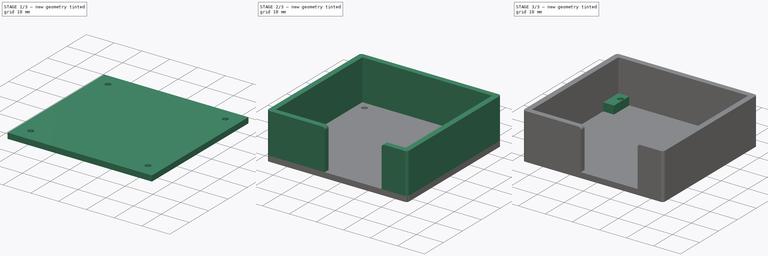
[diagram: build sequence overview — one tinted view per stage of 3, left to right]
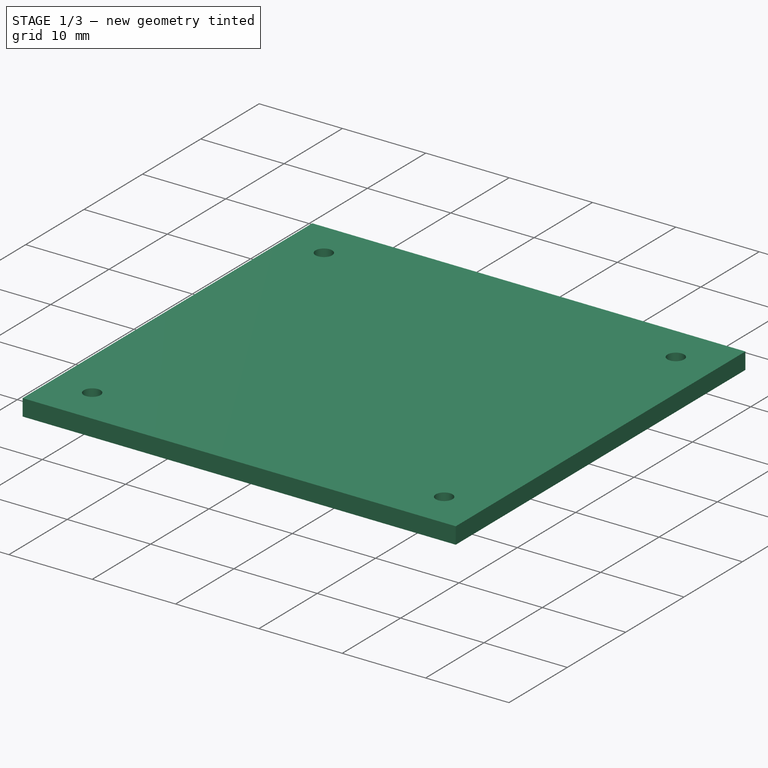
[diagram: stage 1 of 3 — iso view after this stage's code; geometry added in this stage tinted green]
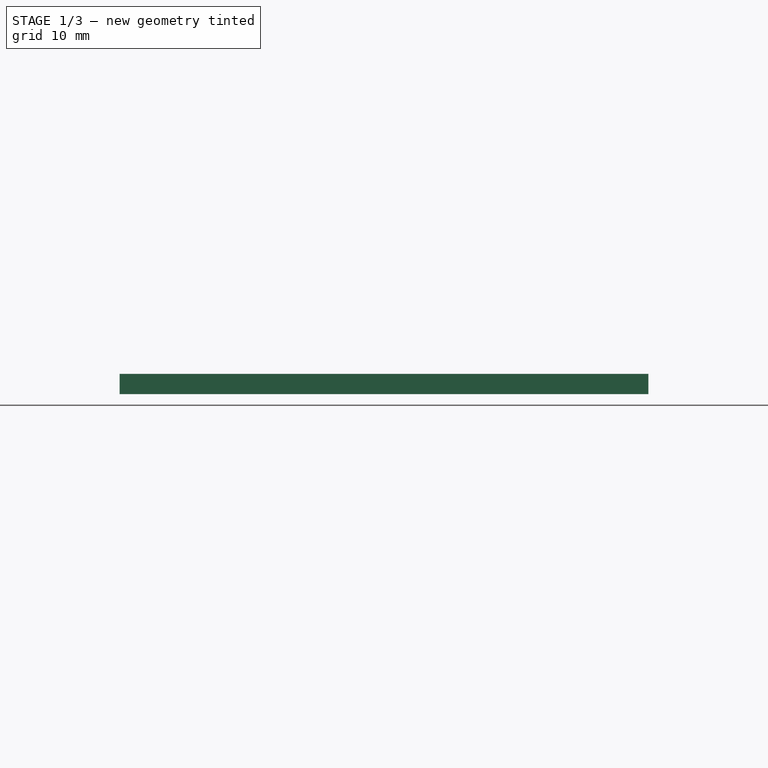
[diagram: stage 1 of 3 — front view after this stage's code; geometry added in this stage tinted green]
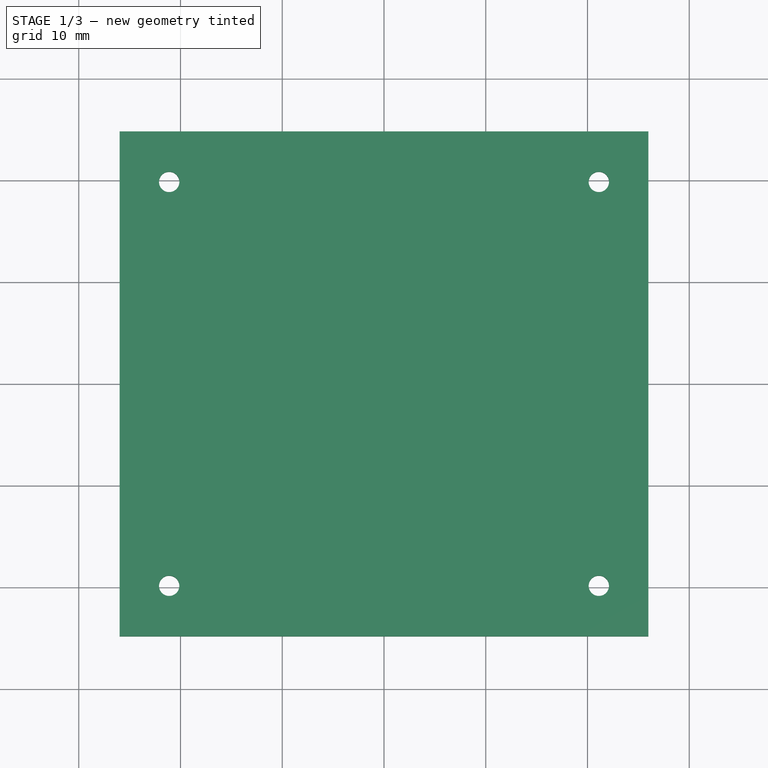
[diagram: stage 1 of 3 — top view after this stage's code; geometry added in this stage tinted green]
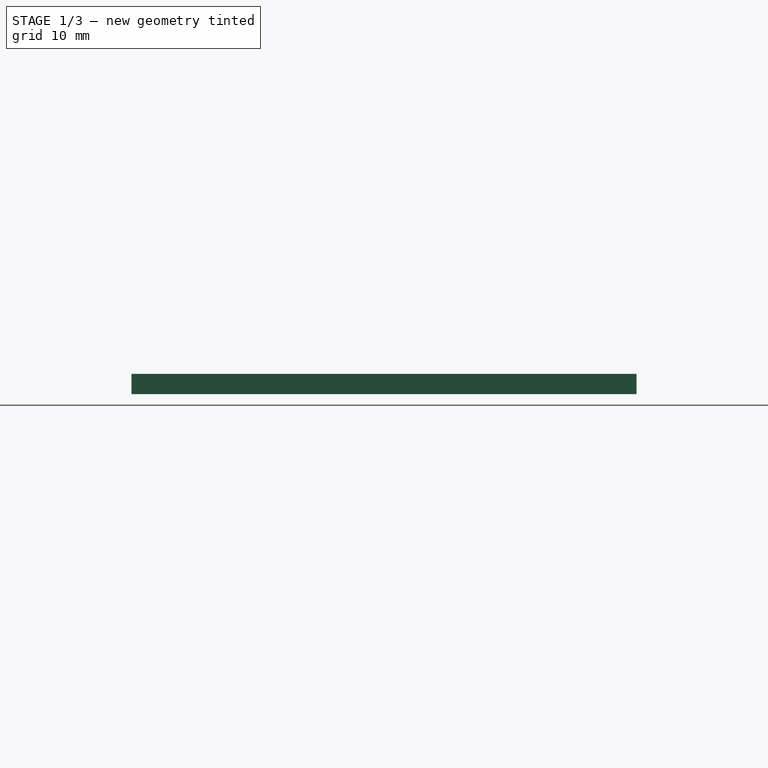
[diagram: stage 1 of 3 — right view after this stage's code; geometry added in this stage tinted green]
FCSTD DOCUMENT  (FreeCAD 0.19R24291 (Git))
Label: temp controller base
License: All rights reserved
LicenseURL: http://en.wikipedia.org/wiki/All_rights_reserved
objects: Sketcher::SketchObject×6, PartDesign::Pad×3, PartDesign::Pocket×3, PartDesign::Fillet×1, PartDesign::Body×1
note: 21 computed .brp shape members not serialized (recipe doc carries the construction recipe); baked Part::Feature solids carry a one-line shape summary decoded from their .brp

FEATURE [Sketcher::SketchObject] Sketch
  FullyConstrained = true
  MapMode = 5
  Support = -> [XY_Plane]
  sketch-geometry (4):
    g0: LineSegment StartX=-25.985 StartY=24.815 StartZ=0 EndX=25.985 EndY=24.815 EndZ=0
    g1: LineSegment StartX=25.985 StartY=24.815 StartZ=0 EndX=25.985 EndY=-24.815 EndZ=0
    g2: LineSegment StartX=25.985 StartY=-24.815 StartZ=0 EndX=-25.985 EndY=-24.815 EndZ=0
    g3: LineSegment StartX=-25.985 StartY=-24.815 StartZ=0 EndX=-25.985 EndY=24.815 EndZ=0
  constraints (11):
    c: Coincident(g0,g1)
    c: Coincident(g1,g2)
    c: Coincident(g2,g3)
    c: Coincident(g3,g0)
    c: Horizontal(g0)
    c: Horizontal(g2)
    c: Vertical(g1)
    c: Vertical(g3)
    c: Symmetric(g0,g1,g-1)
    c: DistanceX(g0,g0) = 51.97
    c: DistanceY(g3,g3) = 49.63
FEATURE [PartDesign::Pad] Pad
  Direction = (1,1,1)
  Length = 2
  Length2 = 100
  Profile = -> Sketch
  Type = 0
FEATURE [Sketcher::SketchObject] Sketch001
  FullyConstrained = true
  MapMode = 5
  Placement = pos=(0,0,2) rot=(0,0,1;0rad)
  Support = -> [Pad]
  sketch-geometry (4):
    g0: Circle CenterX=-21.115 CenterY=19.85 CenterZ=0 NormalX=0 NormalY=0 NormalZ=1 AngleXU=0 Radius=1
    g1: Circle CenterX=-21.115 CenterY=-19.85 CenterZ=0 NormalX=0 NormalY=0 NormalZ=1 AngleXU=0 Radius=1
    g2: Circle CenterX=21.115 CenterY=-19.85 CenterZ=0 NormalX=0 NormalY=0 NormalZ=1 AngleXU=0 Radius=1
    g3: Circle CenterX=21.115 CenterY=19.85 CenterZ=0 NormalX=0 NormalY=0 NormalZ=1 AngleXU=0 Radius=1
  constraints (10):
    c: Equal(g3,g0)
    c: Equal(g1,g0)
    c: Equal(g0,g2)
    c: Symmetric(g0,g2,g-1)
    c: Symmetric(g3,g1,g-1)
    c: DistanceX(g0,g3) = 42.23
    c: Horizontal(g0,g3)
    c: Vertical(g0,g1)
    c: DistanceY(g1,g0) = 39.7
    c: Diameter(g0) = 2
FEATURE [PartDesign::Pocket] Pocket
  BaseFeature = -> Pad
  Length = 25
  Length2 = 100
  Profile = -> Sketch001
  Type = 1
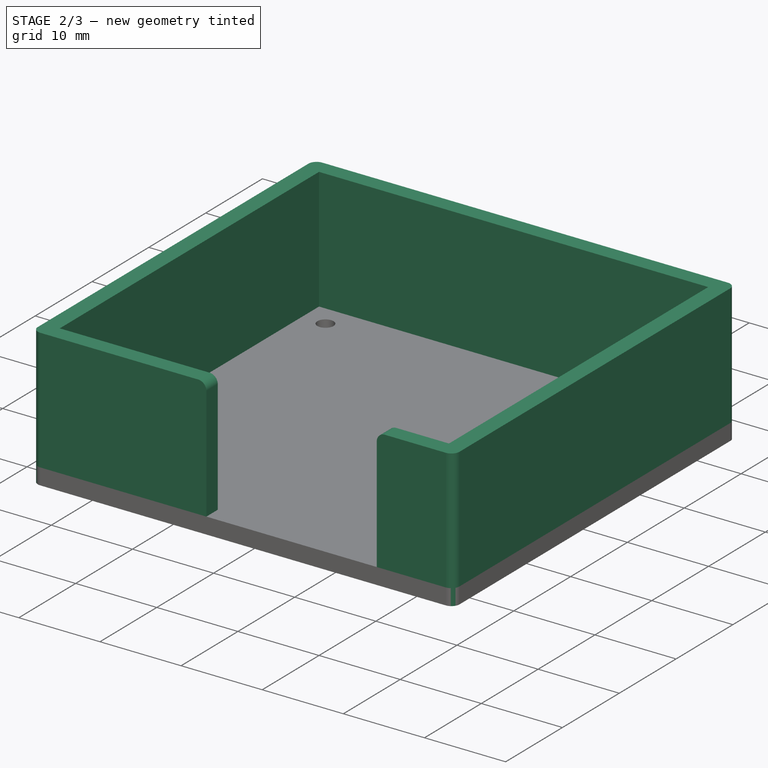
[diagram: stage 2 of 3 — iso view after this stage's code; geometry added in this stage tinted green]
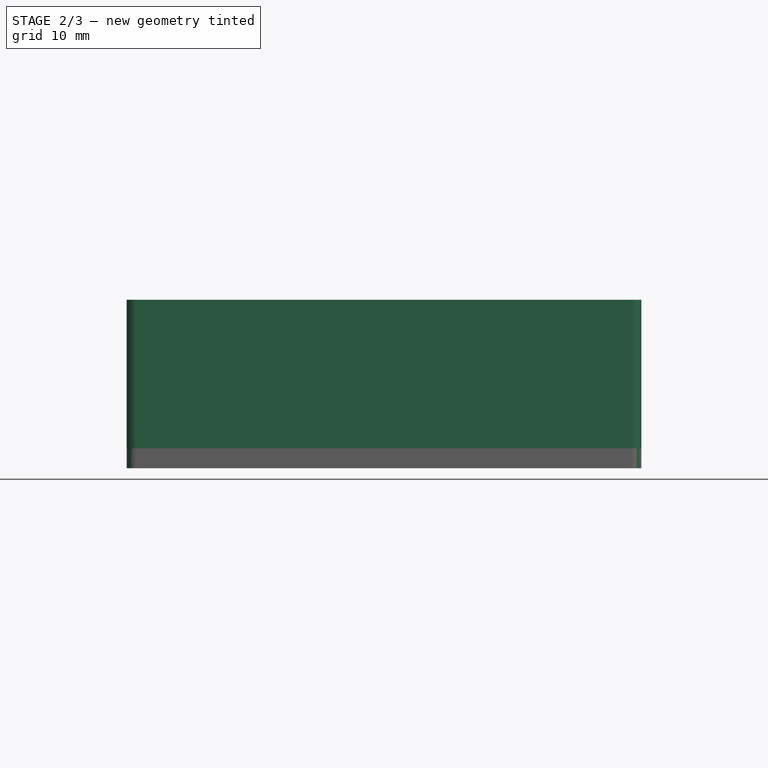
[diagram: stage 2 of 3 — front view after this stage's code; geometry added in this stage tinted green]
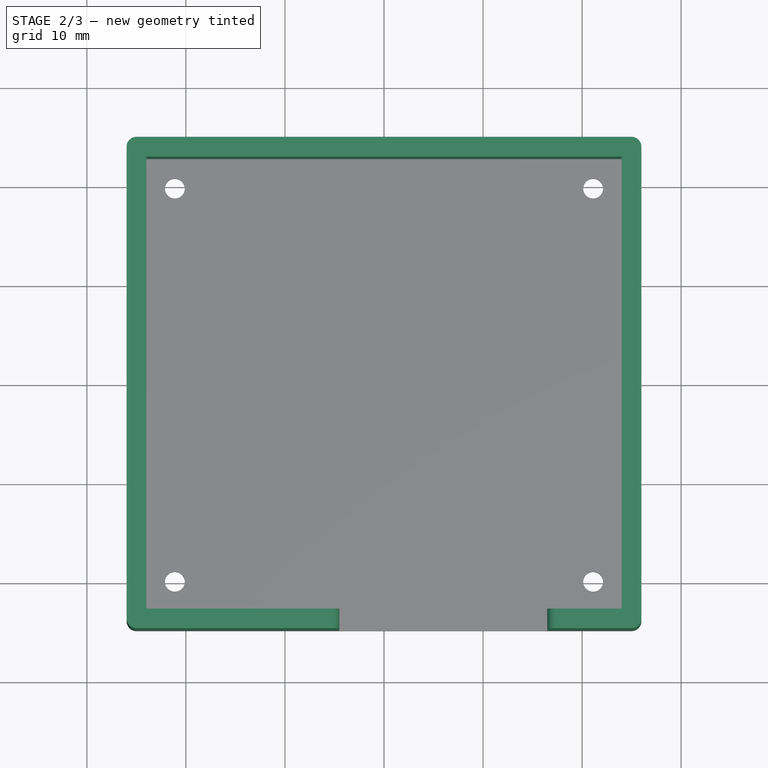
[diagram: stage 2 of 3 — top view after this stage's code; geometry added in this stage tinted green]
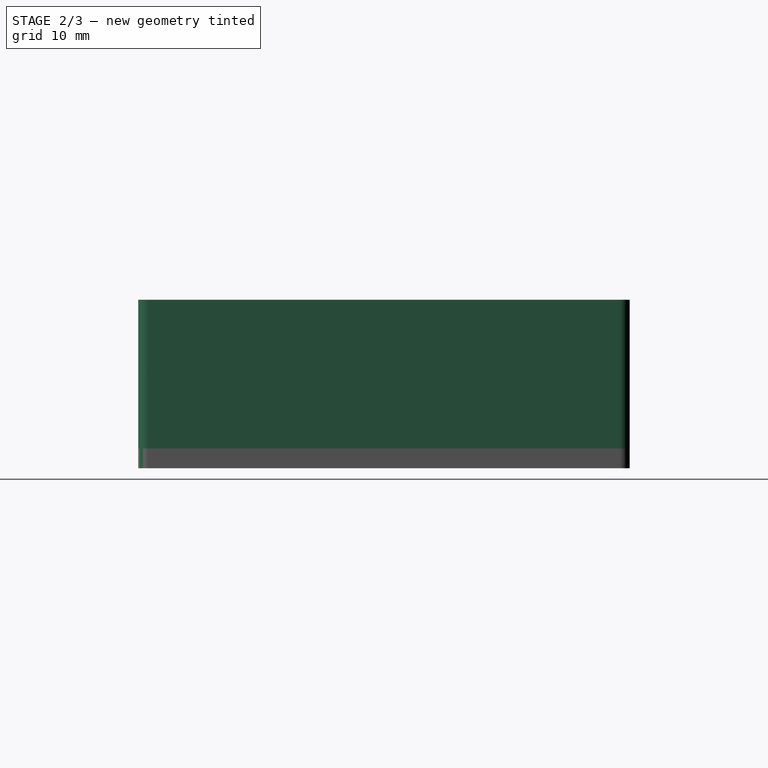
[diagram: stage 2 of 3 — right view after this stage's code; geometry added in this stage tinted green]
FEATURE [Sketcher::SketchObject] Sketch002
  ExternalGeometry = -> [Pocket]
  FullyConstrained = true
  MapMode = 5
  Placement = pos=(0,0,2) rot=(0,0,1;0rad)
  Support = -> [Pocket]
  sketch-geometry (8):
    g0: LineSegment StartX=-23.985 StartY=22.815 StartZ=0 EndX=23.985 EndY=22.815 EndZ=0
    g1: LineSegment StartX=23.985 StartY=22.815 StartZ=0 EndX=23.985 EndY=-22.815 EndZ=0
    g2: LineSegment StartX=23.985 StartY=-22.815 StartZ=0 EndX=-23.985 EndY=-22.815 EndZ=0
    g3: LineSegment StartX=-23.985 StartY=-22.815 StartZ=0 EndX=-23.985 EndY=22.815 EndZ=0
    g4: LineSegment StartX=-25.985 StartY=24.815 StartZ=0 EndX=25.985 EndY=24.815 EndZ=0
    g5: LineSegment StartX=25.985 StartY=24.815 StartZ=0 EndX=25.985 EndY=-24.815 EndZ=0
    g6: LineSegment StartX=25.985 StartY=-24.815 StartZ=0 EndX=-25.985 EndY=-24.815 EndZ=0
    g7: LineSegment StartX=-25.985 StartY=-24.815 StartZ=0 EndX=-25.985 EndY=24.815 EndZ=0
  constraints (21):
    c: Coincident(g0,g1)
    c: Coincident(g1,g2)
    c: Coincident(g2,g3)
    c: Coincident(g3,g0)
    c: Horizontal(g0)
    c: Horizontal(g2)
    c: Vertical(g1)
    c: Vertical(g3)
    c: Coincident(g4,g5)
    c: Coincident(g5,g6)
    c: Coincident(g6,g7)
    c: Coincident(g7,g4)
    c: Horizontal(g6)
    c: Vertical(g5)
    c: Coincident(g-6,g4)
    c: Coincident(g4,g-3)
    c: Coincident(g6,g-4)
    c: DistanceX(g4,g0) = 2
    c: DistanceY(g0,g4) = 2
    c: DistanceX(g1,g5) = 2
    c: DistanceY(g5,g1) = 2
FEATURE [PartDesign::Pad] Pad001
  BaseFeature = -> Pocket
  Direction = (1,1,1)
  Length = 15
  Length2 = 100
  Profile = -> Sketch002
  Type = 0
FEATURE [Sketcher::SketchObject] Sketch003
  ExternalGeometry = -> [Pad001]
  FullyConstrained = true
  MapMode = 5
  Placement = pos=(0,-24.815,0) rot=(1,0,0;1.5708rad)
  Support = -> [Pad001]
  sketch-geometry (4):
    g0: LineSegment StartX=-4.515 StartY=17 StartZ=0 EndX=16.485 EndY=17 EndZ=0
    g1: LineSegment StartX=16.485 StartY=17 StartZ=0 EndX=16.485 EndY=2 EndZ=0
    g2: LineSegment StartX=16.485 StartY=2 StartZ=0 EndX=-4.515 EndY=2 EndZ=0
    g3: LineSegment StartX=-4.515 StartY=2 StartZ=0 EndX=-4.515 EndY=17 EndZ=0
  constraints (12):
    c: Coincident(g0,g1)
    c: Coincident(g1,g2)
    c: Coincident(g2,g3)
    c: Coincident(g3,g0)
    c: Horizontal(g0)
    c: Horizontal(g2)
    c: Vertical(g1)
    c: Vertical(g3)
    c: PointOnObject(g1,g-3)
    c: DistanceX(g1,g-3) = 9.5
    c: DistanceX(g0,g0) = 21
    c: PointOnObject(g0,g-4)
FEATURE [PartDesign::Pocket] Pocket001
  BaseFeature = -> Pad001
  Length = 5
  Length2 = 100
  Profile = -> Sketch003
  Type = 2
FEATURE [PartDesign::Fillet] Fillet
  Base = -> Pocket001 [Edge42,Vertex14,Edge16,Edge4,Edge14,Edge22,Edge33,Edge39]
  BaseFeature = -> Pocket001
  Radius = 1
  SupportTransform = false
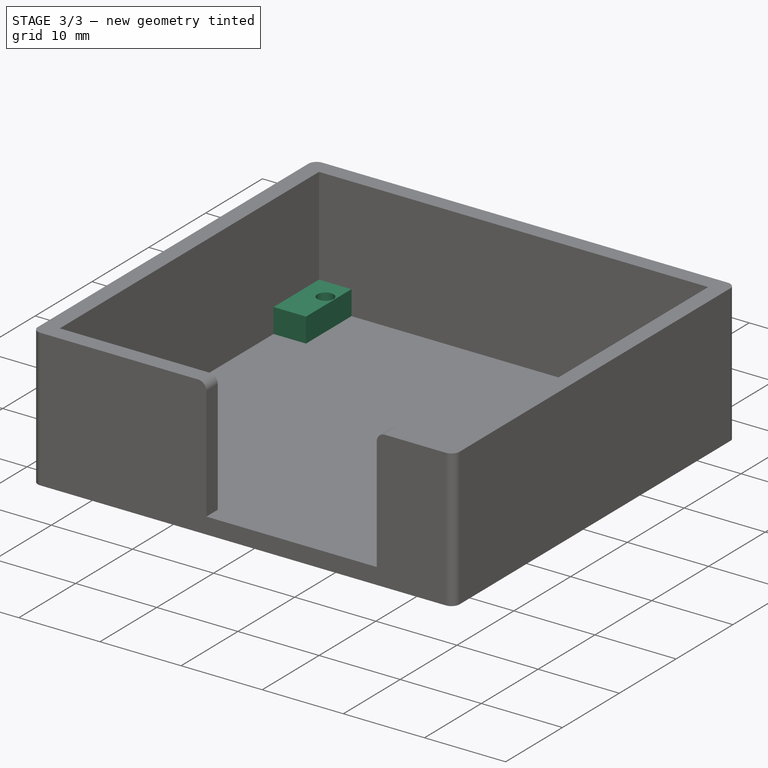
[diagram: stage 3 of 3 — iso view after this stage's code; geometry added in this stage tinted green]
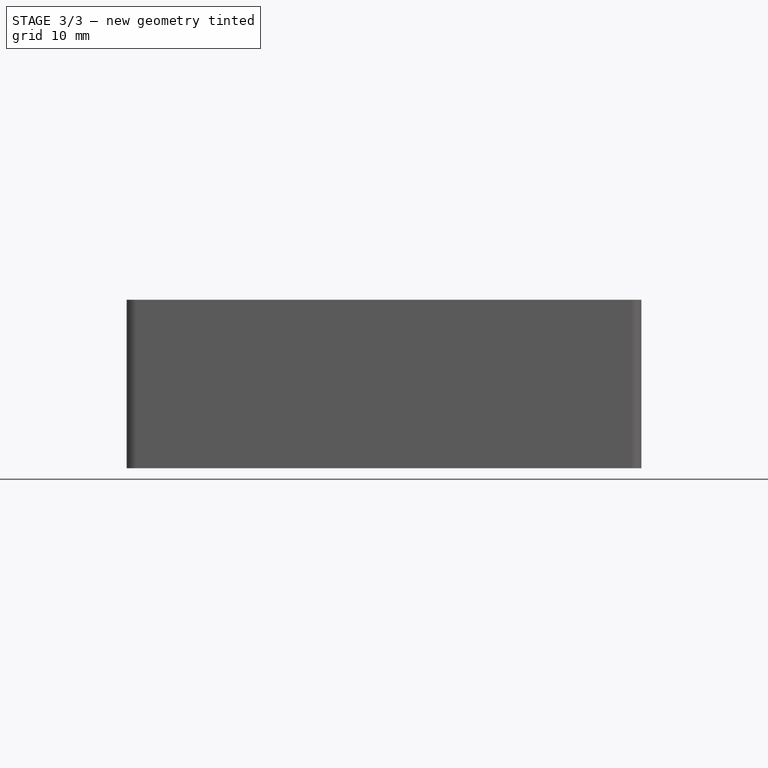
[diagram: stage 3 of 3 — front view after this stage's code; geometry added in this stage tinted green]
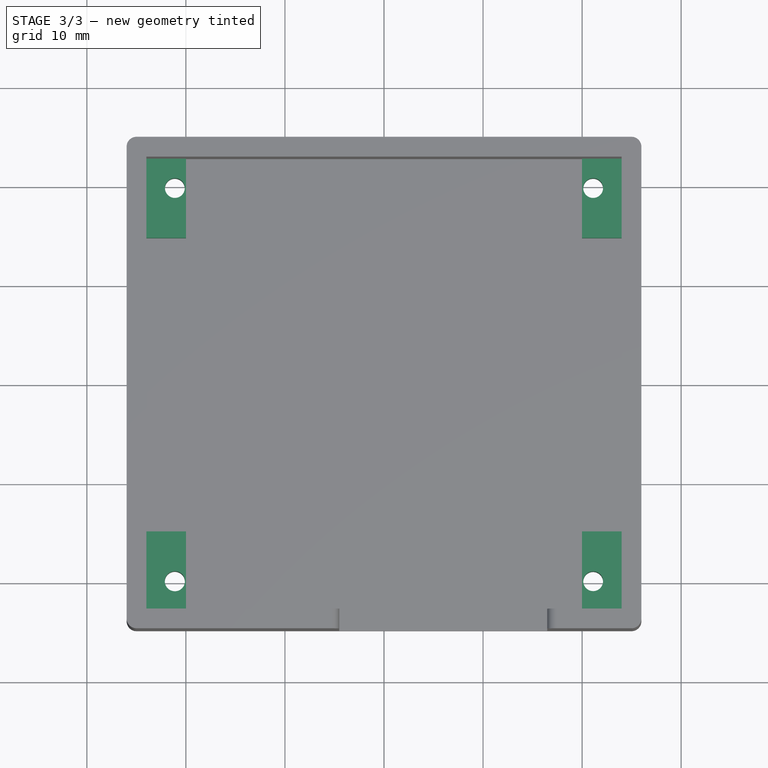
[diagram: stage 3 of 3 — top view after this stage's code; geometry added in this stage tinted green]
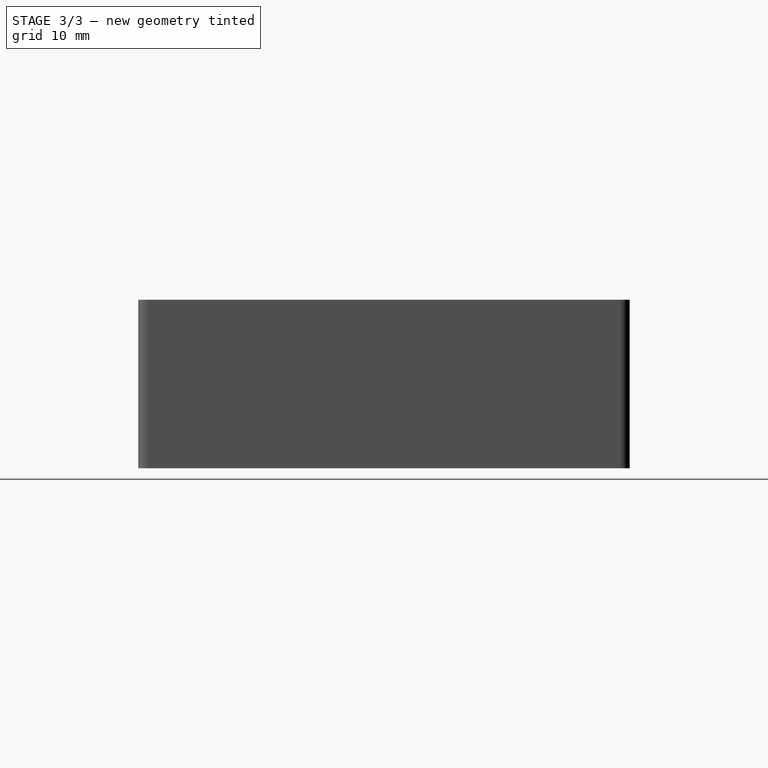
[diagram: stage 3 of 3 — right view after this stage's code; geometry added in this stage tinted green]
FEATURE [Sketcher::SketchObject] Sketch004
  ExternalGeometry = -> [Fillet]
  FullyConstrained = true
  MapMode = 5
  Placement = pos=(0,0,2) rot=(0,0,1;0rad)
  Support = -> [Fillet]
  sketch-geometry (16):
    g0: LineSegment StartX=-23.985 StartY=22.815 StartZ=0 EndX=-19.985 EndY=22.815 EndZ=0
    g1: LineSegment StartX=-19.985 StartY=22.815 StartZ=0 EndX=-19.985 EndY=14.815 EndZ=0
    g2: LineSegment StartX=-19.985 StartY=14.815 StartZ=0 EndX=-23.985 EndY=14.815 EndZ=0
    g3: LineSegment StartX=-23.985 StartY=14.815 StartZ=0 EndX=-23.985 EndY=22.815 EndZ=0
    g4: LineSegment StartX=23.985 StartY=22.815 StartZ=0 EndX=19.985 EndY=22.815 EndZ=0
    g5: LineSegment StartX=19.985 StartY=22.815 StartZ=0 EndX=19.985 EndY=14.815 EndZ=0
    g6: LineSegment StartX=19.985 StartY=14.815 StartZ=0 EndX=23.985 EndY=14.815 EndZ=0
    g7: LineSegment StartX=23.985 StartY=14.815 StartZ=0 EndX=23.985 EndY=22.815 EndZ=0
    g8: LineSegment StartX=23.985 StartY=-22.815 StartZ=0 EndX=19.985 EndY=-22.815 EndZ=0
    g9: LineSegment StartX=19.985 StartY=-22.815 StartZ=0 EndX=19.985 EndY=-14.815 EndZ=0
    g10: LineSegment StartX=19.985 StartY=-14.815 StartZ=0 EndX=23.985 EndY=-14.815 EndZ=0
    g11: LineSegment StartX=23.985 StartY=-14.815 StartZ=0 EndX=23.985 EndY=-22.815 EndZ=0
    g12: LineSegment StartX=-23.985 StartY=-22.815 StartZ=0 EndX=-19.985 EndY=-22.815 EndZ=0
    g13: LineSegment StartX=-19.985 StartY=-22.815 StartZ=0 EndX=-19.985 EndY=-14.815 EndZ=0
    g14: LineSegment StartX=-19.985 StartY=-14.815 StartZ=0 EndX=-23.985 EndY=-14.815 EndZ=0
    g15: LineSegment StartX=-23.985 StartY=-14.815 StartZ=0 EndX=-23.985 EndY=-22.815 EndZ=0
  constraints (45):
    c: Coincident(g0,g1)
    c: Coincident(g1,g2)
    c: Coincident(g2,g3)
    c: Coincident(g3,g0)
    c: Horizontal(g0)
    c: Horizontal(g2)
    c: Vertical(g1)
    c: Vertical(g3)
    c: Coincident(g4,g5)
    c: Coincident(g5,g6)
    c: Coincident(g6,g7)
    c: Coincident(g7,g4)
    c: Horizontal(g4)
    c: Horizontal(g6)
    c: Vertical(g5)
    c: Vertical(g7)
    c: PointOnObject(g4,g-4)
    c: Coincident(g8,g9)
    c: Coincident(g9,g10)
    c: Coincident(g10,g11)
    c: Coincident(g11,g8)
    c: Horizontal(g8)
    c: Horizontal(g10)
    c: Vertical(g9)
    c: Vertical(g11)
    c: PointOnObject(g8,g-4)
    c: Coincident(g12,g13)
    c: Coincident(g13,g14)
    c: Coincident(g14,g15)
    c: Coincident(g15,g12)
    c: Horizontal(g14)
    c: Vertical(g13)
    c: Vertical(g15)
    c: PointOnObject(g12,g-3)
    c: Equal(g14,g2)
    c: Equal(g13,g1)
    c: Equal(g1,g5)
    c: Equal(g5,g9)
    c: Symmetric(g1,g9,g-1)
    c: Symmetric(g13,g5,g-1)
    c: DistanceX(g0,g0) = 4
    c: Horizontal(g12)
    c: DistanceY(g1,g1) = 8
    c: Horizontal(g0,g4)
    c: Coincident(g0,g-5)
FEATURE [PartDesign::Pad] Pad002
  BaseFeature = -> Fillet
  Direction = (1,1,1)
  Length = 3
  Length2 = 100
  Profile = -> Sketch004
  Type = 0
FEATURE [Sketcher::SketchObject] Sketch005
  ExternalGeometry = -> [Fillet]
  FullyConstrained = false
  MapMode = 5
  Placement = pos=(0,0,5) rot=(0,0,1;0rad)
  Support = -> [Pad002]
  sketch-geometry (4):
    g0: Circle CenterX=-21.115 CenterY=19.85 CenterZ=0 NormalX=0 NormalY=0 NormalZ=1 AngleXU=0 Radius=1
    g1: Circle CenterX=21.115 CenterY=19.85 CenterZ=0 NormalX=0 NormalY=0 NormalZ=1 AngleXU=0 Radius=1
    g2: Circle CenterX=-21.115 CenterY=-19.85 CenterZ=0 NormalX=0 NormalY=0 NormalZ=1 AngleXU=0 Radius=1.01527
    g3: Circle CenterX=21.115 CenterY=-19.85 CenterZ=0 NormalX=0 NormalY=0 NormalZ=1 AngleXU=0 Radius=1
  constraints (4):
    c: Coincident(g0,g-3)
    c: Coincident(g1,g-4)
    c: Coincident(g2,g-5)
    c: Coincident(g3,g-6)
FEATURE [PartDesign::Pocket] Pocket002
  BaseFeature = -> Pad002
  Length = 5
  Length2 = 100
  Profile = -> Sketch005
  Type = 1
FEATURE [PartDesign::Body] Body
  Group = -> [Sketch,Pad,Sketch001,Pocket,Sketch002,Pad001,Sketch003,Pocket001,Fillet,Sketch004,Pad002,Sketch005,Pocket002]
  Origin = -> Origin
  Tip = -> Pocket002
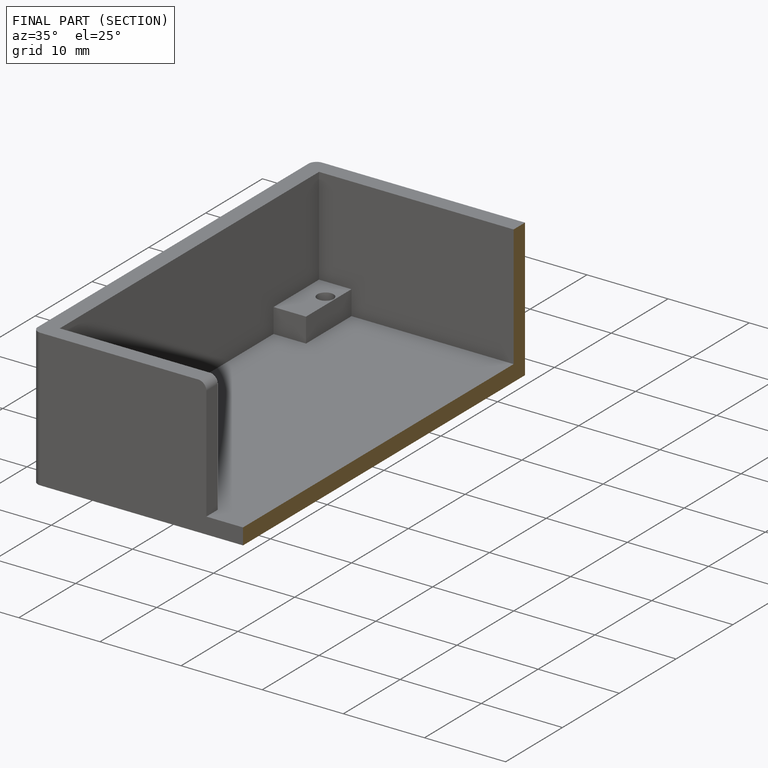
[diagram: finished part — half-section view (interior)]
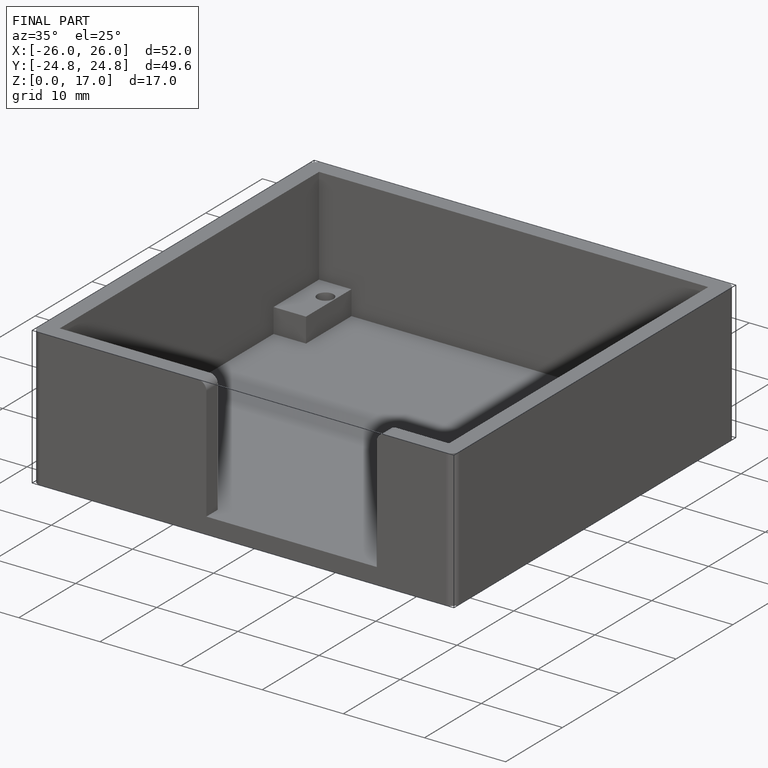
[diagram: finished part — iso view with bounding-box wireframe]
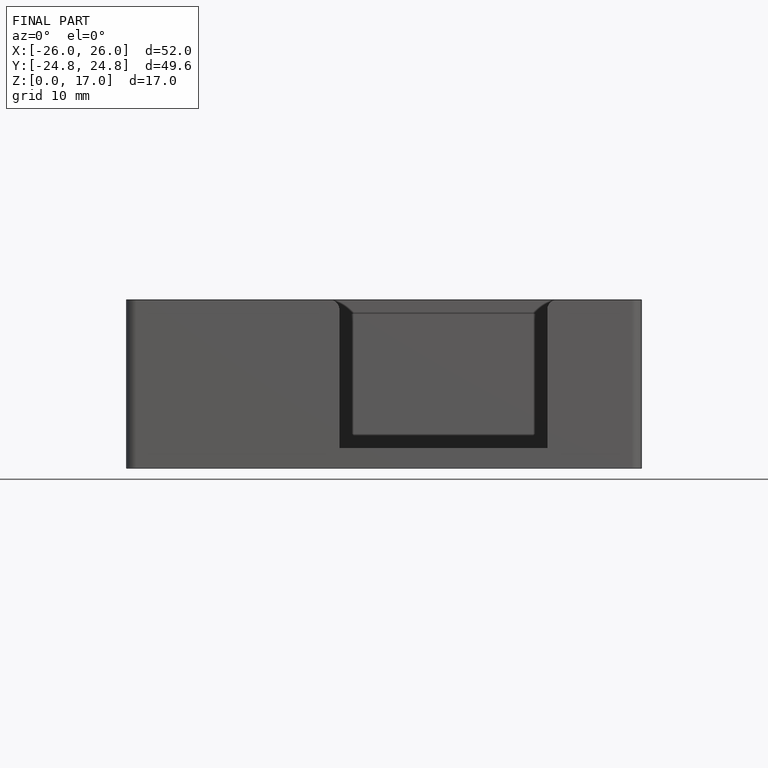
[diagram: finished part — front view with bounding-box wireframe]
